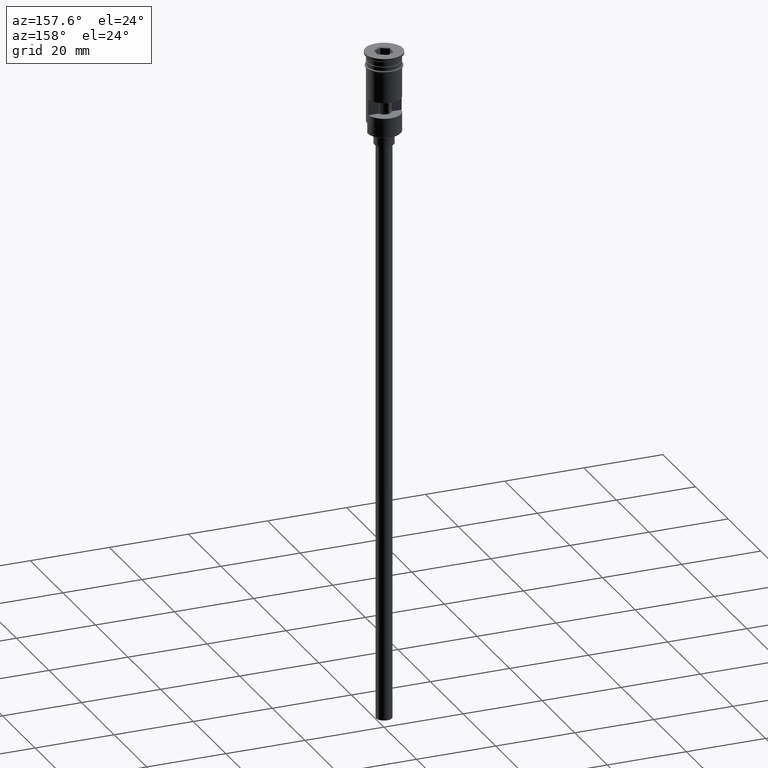
[diagram: clean part render]
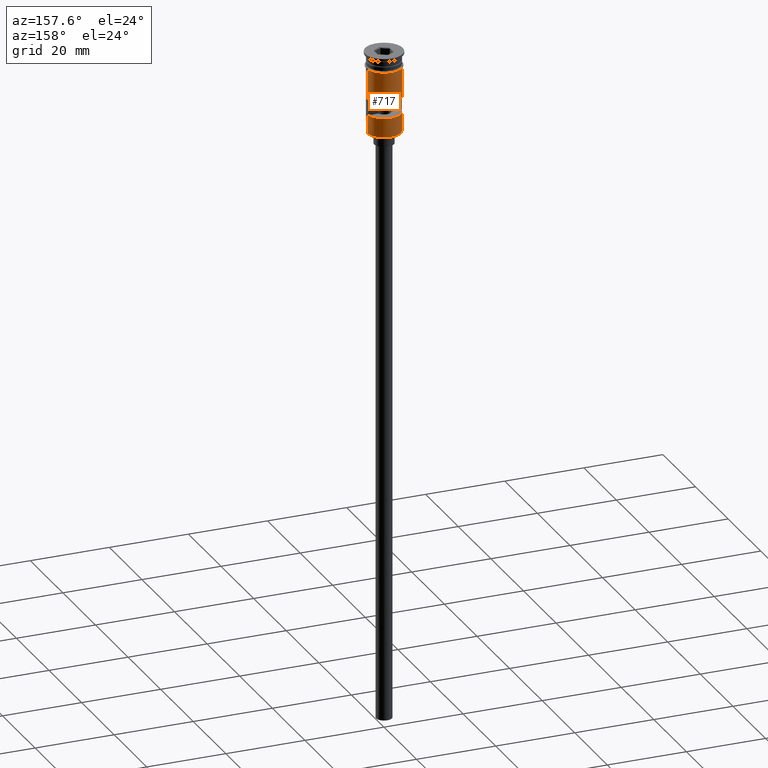
[diagram: same view with one face highlighted and labeled with its STEP entity id]
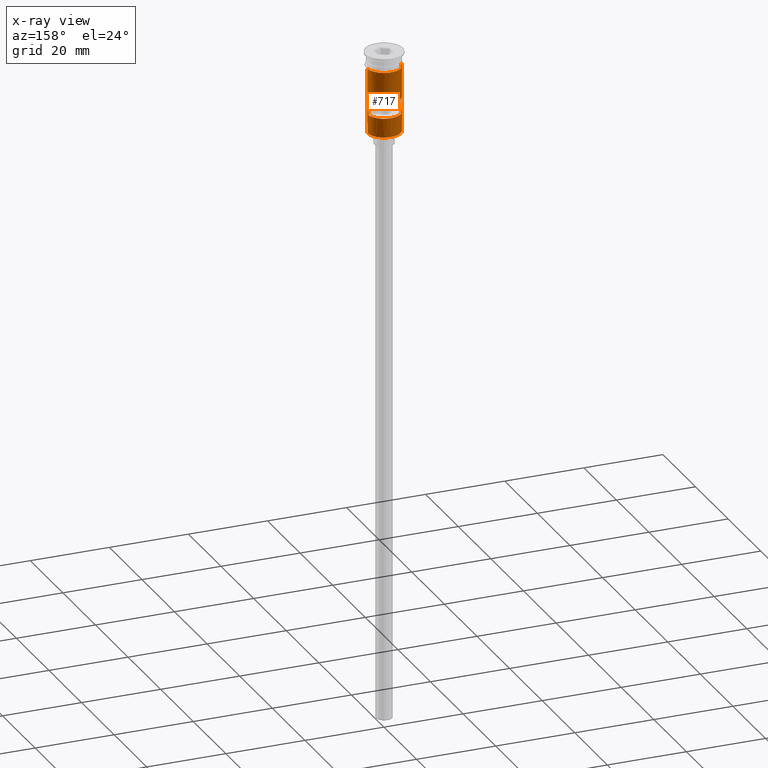
[diagram: x-ray of the same camera — body ghosted, the highlighted face saturated]
A machine part, auxiliary view. The second image highlights one B-rep face of the part: STEP entity #717.
The next image is the same camera in x-ray: the body ghosted, the highlighted face saturated — about 0% of this face is hidden behind the body in this view.
In plain terms, the highlighted cylindrical surface (edge-blend (fillet) strip) has radius 4.25 mm, axis along (-0, -0, 1).
Its self-contained STEP definition (entity closure, byte-faithful):
#40 = DIRECTION ( 'NONE',  ( 1.000000000000000000, 0.000000000000000000, 0.000000000000000000 ) ) ;
#47 = DIRECTION ( 'NONE',  ( -0.000000000000000000, 0.000000000000000000, -1.000000000000000000 ) ) ;
#56 = ORIENTED_EDGE ( 'NONE', *, *, #257, .F. ) ;
#75 = LINE ( 'NONE', #573, #797 ) ;
#98 = CARTESIAN_POINT ( 'NONE',  ( -4.249999999999994671, 0.000000000000000000, -20.49999999999999645 ) ) ;
#108 = VECTOR ( 'NONE', #389, 1000.000000000000000 ) ;
#119 = VERTEX_POINT ( 'NONE', #682 ) ;
#124 = CARTESIAN_POINT ( 'NONE',  ( -4.207433897282282231, 0.5999999999999996447, -11.50000000000000000 ) ) ;
#140 = CARTESIAN_POINT ( 'NONE',  ( 4.249999999999994671, 5.204748896376245769E-16, -20.49999999999999645 ) ) ;
#149 = VERTEX_POINT ( 'NONE', #715 ) ;
#151 = VERTEX_POINT ( 'NONE', #1109 ) ;
#154 = DIRECTION ( 'NONE',  ( 0.000000000000000000, 0.000000000000000000, -1.000000000000000000 ) ) ;
#160 = CIRCLE ( 'NONE', #1457, 4.249999999999999112 ) ;
#172 = VERTEX_POINT ( 'NONE', #1227 ) ;
#244 = ORIENTED_EDGE ( 'NONE', *, *, #767, .F. ) ;
#246 = VERTEX_POINT ( 'NONE', #1149 ) ;
#256 = CARTESIAN_POINT ( 'NONE',  ( 0.000000000000000000, 0.000000000000000000, 0.000000000000000000 ) ) ;
#257 = EDGE_CURVE ( 'NONE', #1515, #1307, #979, .T. ) ;
#264 = DIRECTION ( 'NONE',  ( -0.000000000000000000, -0.000000000000000000, 1.000000000000000000 ) ) ;
#276 = EDGE_LOOP ( 'NONE', ( #1523, #641, #1519, #544, #1583, #1410 ) ) ;
#330 = AXIS2_PLACEMENT_3D ( 'NONE', #990, #1389, #1289 ) ;
#359 = DIRECTION ( 'NONE',  ( -1.000000000000000000, 0.000000000000000000, 0.000000000000000000 ) ) ;
#371 = LINE ( 'NONE', #1282, #1081 ) ;
#387 = ORIENTED_EDGE ( 'NONE', *, *, #730, .F. ) ;
#389 = DIRECTION ( 'NONE',  ( -0.000000000000000000, -0.000000000000000000, 1.000000000000000000 ) ) ;
#461 = DIRECTION ( 'NONE',  ( -0.000000000000000000, -0.000000000000000000, 1.000000000000000000 ) ) ;
#466 = ORIENTED_EDGE ( 'NONE', *, *, #1318, .F. ) ;
#485 = CARTESIAN_POINT ( 'NONE',  ( 0.000000000000000000, 0.000000000000000000, -20.30000000000000426 ) ) ;
#491 = DIRECTION ( 'NONE',  ( 0.000000000000000000, 0.000000000000000000, 1.000000000000000000 ) ) ;
#515 = CARTESIAN_POINT ( 'NONE',  ( 0.000000000000000000, 0.000000000000000000, -3.799999999999998934 ) ) ;
#544 = ORIENTED_EDGE ( 'NONE', *, *, #983, .F. ) ;
#573 = CARTESIAN_POINT ( 'NONE',  ( -4.249999999999996447, 5.204748896376247741E-16, 0.000000000000000000 ) ) ;
#580 = CARTESIAN_POINT ( 'NONE',  ( 4.249999999999999112, 0.000000000000000000, -3.799999999999998934 ) ) ;
#618 = EDGE_LOOP ( 'NONE', ( #244, #56, #466, #387 ) ) ;
#641 = ORIENTED_EDGE ( 'NONE', *, *, #1276, .T. ) ;
#682 = CARTESIAN_POINT ( 'NONE',  ( 4.207433897282282231, 0.5999999999999996447, -15.50000000000000000 ) ) ;
#683 = DIRECTION ( 'NONE',  ( -0.000000000000000000, -0.000000000000000000, 1.000000000000000000 ) ) ;
#715 = CARTESIAN_POINT ( 'NONE',  ( -4.249999999999999112, 5.204748896376250699E-16, -3.799999999999998934 ) ) ;
#717 = ADVANCED_FACE ( 'NONE', ( #1155, #889 ), #1512, .T. ) ;
#719 = VECTOR ( 'NONE', #461, 1000.000000000000000 ) ;
#730 = EDGE_CURVE ( 'NONE', #119, #151, #1312, .T. ) ;
#744 = DIRECTION ( 'NONE',  ( -0.000000000000000000, -0.000000000000000000, 1.000000000000000000 ) ) ;
#763 = CARTESIAN_POINT ( 'NONE',  ( 0.000000000000000000, 0.000000000000000000, -11.50000000000000000 ) ) ;
#767 = EDGE_CURVE ( 'NONE', #1307, #119, #371, .T. ) ;
#784 = EDGE_CURVE ( 'NONE', #172, #1536, #874, .T. ) ;
#797 = VECTOR ( 'NONE', #683, 1000.000000000000000 ) ;
#827 = DIRECTION ( 'NONE',  ( -0.000000000000000000, -0.000000000000000000, 1.000000000000000000 ) ) ;
#870 = AXIS2_PLACEMENT_3D ( 'NONE', #256, #744, #1260 ) ;
#874 = LINE ( 'NONE', #140, #108 ) ;
#889 = FACE_OUTER_BOUND ( 'NONE', #276, .T. ) ;
#907 = DIRECTION ( 'NONE',  ( 1.000000000000000000, 0.000000000000000000, 0.000000000000000000 ) ) ;
#979 = CIRCLE ( 'NONE', #1201, 4.249999999999996447 ) ;
#983 = EDGE_CURVE ( 'NONE', #1536, #1369, #1379, .T. ) ;
#990 = CARTESIAN_POINT ( 'NONE',  ( 0.000000000000000000, 0.000000000000000000, -15.50000000000000000 ) ) ;
#1081 = VECTOR ( 'NONE', #154, 1000.000000000000000 ) ;
#1083 = CARTESIAN_POINT ( 'NONE',  ( 4.207433897282282231, 0.5999999999999996447, -11.50000000000000000 ) ) ;
#1095 = CARTESIAN_POINT ( 'NONE',  ( -4.249999999999994671, 0.000000000000000000, -17.80000000000000071 ) ) ;
#1109 = CARTESIAN_POINT ( 'NONE',  ( -4.207433897282282231, 0.5999999999999996447, -15.50000000000000000 ) ) ;
#1149 = CARTESIAN_POINT ( 'NONE',  ( -4.249999999999994671, 0.000000000000000000, -20.30000000000000426 ) ) ;
#1155 = FACE_BOUND ( 'NONE', #618, .T. ) ;
#1190 = LINE ( 'NONE', #98, #719 ) ;
#1201 = AXIS2_PLACEMENT_3D ( 'NONE', #763, #47, #907 ) ;
#1221 = DIRECTION ( 'NONE',  ( -0.000000000000000000, -0.000000000000000000, 1.000000000000000000 ) ) ;
#1227 = CARTESIAN_POINT ( 'NONE',  ( 4.249999999999994671, 5.204748896376245769E-16, -20.30000000000000426 ) ) ;
#1260 = DIRECTION ( 'NONE',  ( 1.000000000000000000, 0.000000000000000000, 0.000000000000000000 ) ) ;
#1268 = EDGE_CURVE ( 'NONE', #246, #1418, #1190, .T. ) ;
#1276 = EDGE_CURVE ( 'NONE', #1418, #149, #75, .T. ) ;
#1280 = AXIS2_PLACEMENT_3D ( 'NONE', #485, #491, #359 ) ;
#1282 = CARTESIAN_POINT ( 'NONE',  ( 4.207433897282282231, 0.5999999999999996447, 0.000000000000000000 ) ) ;
#1289 = DIRECTION ( 'NONE',  ( -1.000000000000000000, 0.000000000000000000, 0.000000000000000000 ) ) ;
#1305 = VECTOR ( 'NONE', #1221, 1000.000000000000000 ) ;
#1307 = VERTEX_POINT ( 'NONE', #1083 ) ;
#1312 = CIRCLE ( 'NONE', #330, 4.249999999999996447 ) ;
#1318 = EDGE_CURVE ( 'NONE', #151, #1515, #1325, .T. ) ;
#1325 = LINE ( 'NONE', #1573, #1305 ) ;
#1369 = VERTEX_POINT ( 'NONE', #580 ) ;
#1379 = LINE ( 'NONE', #1505, #1435 ) ;
#1389 = DIRECTION ( 'NONE',  ( 0.000000000000000000, 0.000000000000000000, 1.000000000000000000 ) ) ;
#1410 = ORIENTED_EDGE ( 'NONE', *, *, #1462, .T. ) ;
#1418 = VERTEX_POINT ( 'NONE', #1095 ) ;
#1435 = VECTOR ( 'NONE', #827, 1000.000000000000000 ) ;
#1457 = AXIS2_PLACEMENT_3D ( 'NONE', #515, #264, #40 ) ;
#1462 = EDGE_CURVE ( 'NONE', #172, #246, #1561, .T. ) ;
#1483 = CARTESIAN_POINT ( 'NONE',  ( 4.249999999999996447, 5.204748896376247741E-16, -17.80000000000000071 ) ) ;
#1505 = CARTESIAN_POINT ( 'NONE',  ( 4.249999999999996447, 0.000000000000000000, 0.000000000000000000 ) ) ;
#1512 = CYLINDRICAL_SURFACE ( 'NONE', #870, 4.249999999999996447 ) ;
#1515 = VERTEX_POINT ( 'NONE', #124 ) ;
#1519 = ORIENTED_EDGE ( 'NONE', *, *, #1553, .F. ) ;
#1523 = ORIENTED_EDGE ( 'NONE', *, *, #1268, .T. ) ;
#1536 = VERTEX_POINT ( 'NONE', #1483 ) ;
#1553 = EDGE_CURVE ( 'NONE', #1369, #149, #160, .T. ) ;
#1561 = CIRCLE ( 'NONE', #1280, 4.249999999999996447 ) ;
#1573 = CARTESIAN_POINT ( 'NONE',  ( -4.207433897282282231, 0.5999999999999996447, 0.000000000000000000 ) ) ;
#1583 = ORIENTED_EDGE ( 'NONE', *, *, #784, .F. ) ;